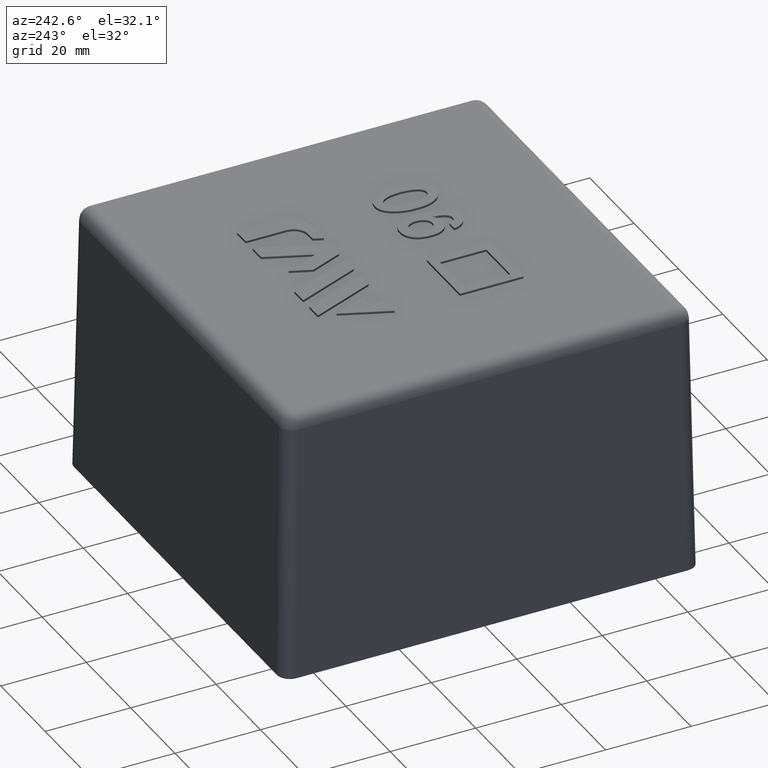
[diagram: clean part render]
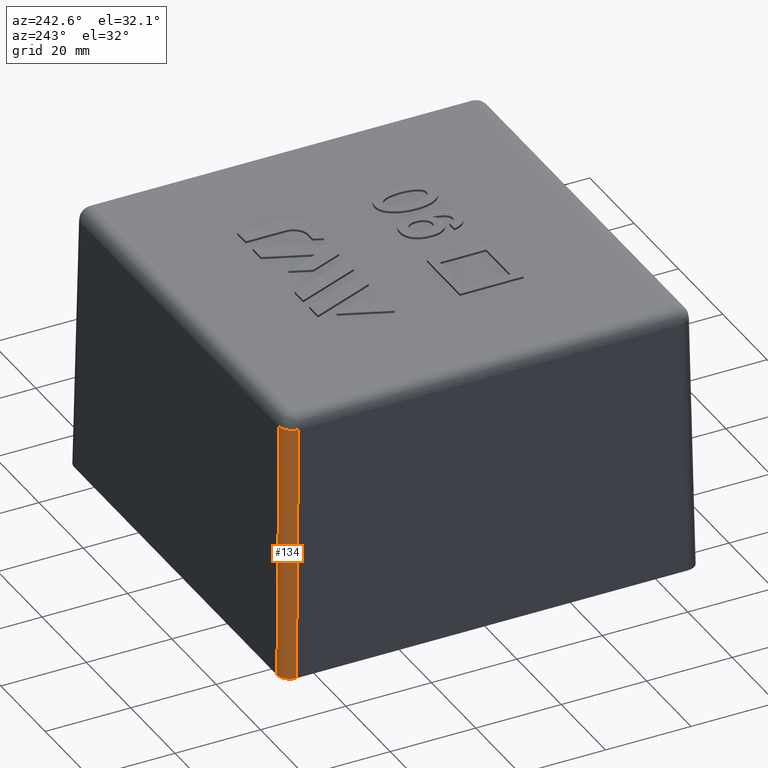
[diagram: same view with one face highlighted and labeled with its STEP entity id]
A machine part, auxiliary view. The second image highlights one B-rep face of the part: STEP entity #134.
In plain terms, the highlighted cylindrical surface (edge-blend (fillet) strip) has radius 3 mm, axis along (0.0174, -0.0174, 0.9997).
Its self-contained STEP definition (entity closure, byte-faithful):
#134 = ADVANCED_FACE( '', ( #280 ), #281, .T. );
#280 = FACE_OUTER_BOUND( '', #452, .T. );
#281 = CYLINDRICAL_SURFACE( '', #453, 3.00000000000000 );
#452 = EDGE_LOOP( '', ( #986, #987, #988, #989 ) );
#453 = AXIS2_PLACEMENT_3D( '', #990, #991, #992 );
#986 = ORIENTED_EDGE( '', *, *, #1195, .F. );
#987 = ORIENTED_EDGE( '', *, *, #1287, .T. );
#988 = ORIENTED_EDGE( '', *, *, #1303, .F. );
#989 = ORIENTED_EDGE( '', *, *, #1304, .F. );
#990 = CARTESIAN_POINT( '', ( -45.7716516670533, 45.7716516670533, 1.59789430344035 ) );
#991 = DIRECTION( '', ( 0.0174497491606827, -0.0174497491606827, 0.999695459881888 ) );
#992 = DIRECTION( '', ( -0.999847695156391, 0.000000000000000, 0.0174524064372835 ) );
#1195 = EDGE_CURVE( '', #1411, #1413, #1414, .F. );
#1287 = EDGE_CURVE( '', #1411, #1548, #1554, .T. );
#1303 = EDGE_CURVE( '', #1577, #1548, #1578, .T. );
#1304 = EDGE_CURVE( '', #1413, #1577, #1579, .F. );
#1411 = VERTEX_POINT( '', #1790 );
#1413 = VERTEX_POINT( '', #1793 );
#1414 = LINE( '', #1794, #1795 );
#1548 = VERTEX_POINT( '', #2054 );
#1554 = CIRCLE( '', #2062, 3.00000000000000 );
#1577 = VERTEX_POINT( '', #2091 );
#1578 = LINE( '', #2092, #2093 );
#1579 = ELLIPSE( '', #2094, 3.00091389867315, 3.00000000000000 );
#1790 = CARTESIAN_POINT( '', ( -47.7517822056444, 44.7522391201752, 60.0523572193119 ) );
#1793 = CARTESIAN_POINT( '', ( -48.8000000000000, 45.8004569145308, 0.000000000000000 ) );
#1794 = CARTESIAN_POINT( '', ( -48.7711947525225, 45.7716516670532, 1.65025152275220 ) );
#1795 = VECTOR( '', #2264, 1000.00000000000 );
#2054 = CARTESIAN_POINT( '', ( -44.7522391201752, 47.7517822056443, 60.0523572193118 ) );
#2062 = AXIS2_PLACEMENT_3D( '', #2355, #2356, #2357 );
#2091 = CARTESIAN_POINT( '', ( -45.8004569145308, 48.7999999999999, 0.000000000000000 ) );
#2092 = CARTESIAN_POINT( '', ( -45.8013702566405, 48.8009133421096, -0.0523253344201975 ) );
#2093 = VECTOR( '', #2391, 1000.00000000000 );
#2094 = AXIS2_PLACEMENT_3D( '', #2392, #2393, #2394 );
#2264 = DIRECTION( '', ( 0.0174497491606827, -0.0174497491606827, 0.999695459881887 ) );
#2355 = CARTESIAN_POINT( '', ( -44.7522391201752, 44.7522391201752, 60.0000000000000 ) );
#2356 = DIRECTION( '', ( -0.0174497491606827, 0.0174497491606827, -0.999695459881888 ) );
#2357 = DIRECTION( '', ( -0.999847695156391, 0.000000000000000, 0.0174524064372835 ) );
#2391 = DIRECTION( '', ( 0.0174497491606827, -0.0174497491606827, 0.999695459881887 ) );
#2392 = CARTESIAN_POINT( '', ( -45.7995430158683, 45.7995430158682, 0.000000000000000 ) );
#2393 = DIRECTION( '', ( 0.000000000000000, 0.000000000000000, 1.00000000000000 ) );
#2394 = DIRECTION( '', ( -0.707106781186548, 0.707106781186548, 0.000000000000000 ) );